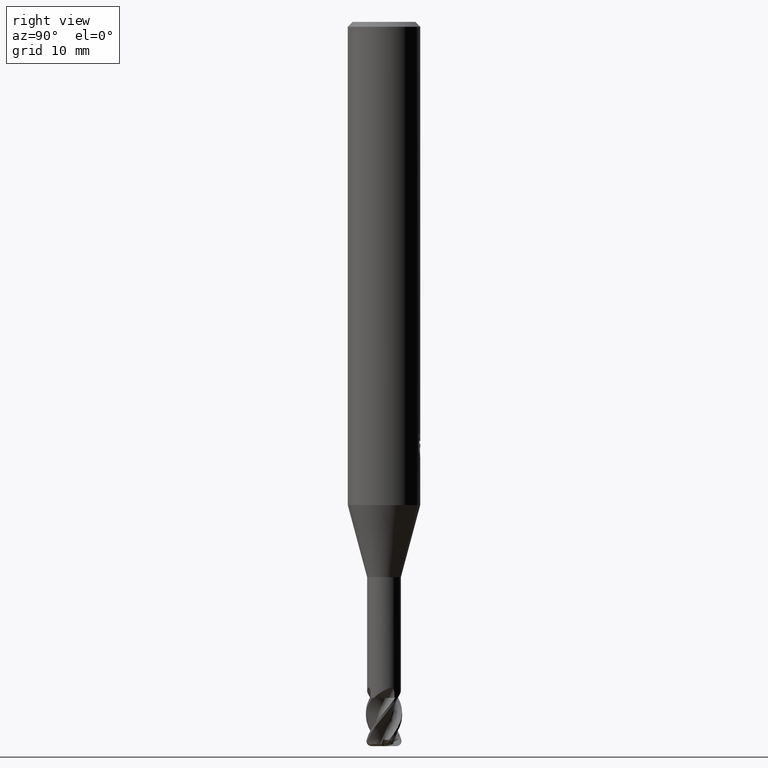
[diagram: clean part render]
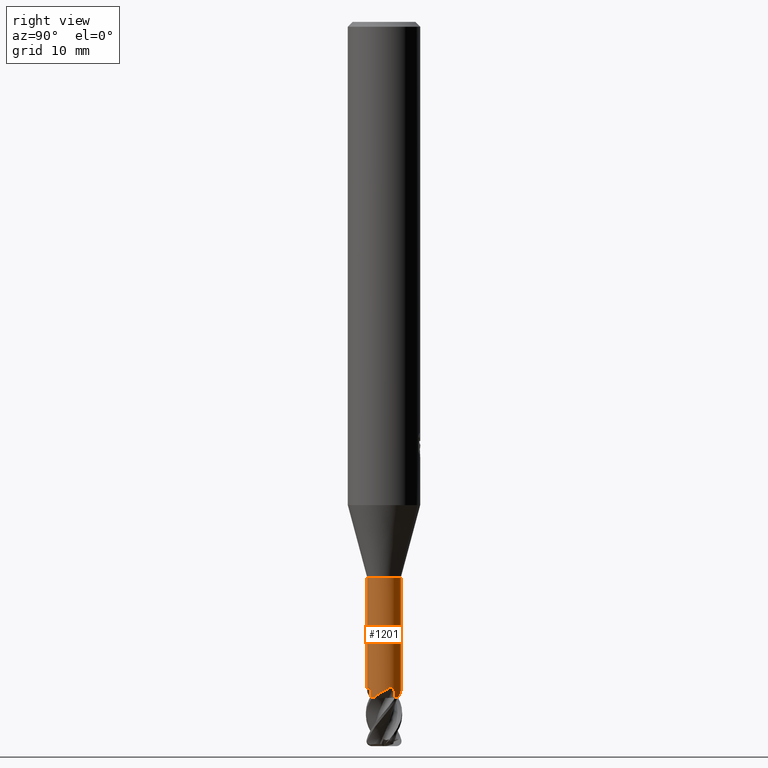
[diagram: same view with one face highlighted and labeled with its STEP entity id]
A machine part, right view. The second image highlights one B-rep face of the part: STEP entity #1201.
In plain terms, the highlighted cylindrical surface (edge-blend (fillet) strip) has radius 1.4 mm, axis along (-0, -0, 1).
Its self-contained STEP definition (entity closure, byte-faithful):
#535=VERTEX_POINT('',#1519);
#549=EDGE_CURVE('',#787,#753,#1535,.T.);
#613=VERTEX_POINT('',#1603);
#639=EDGE_CURVE('',#707,#753,#1630,.T.);
#659=VERTEX_POINT('',#1651);
#673=VERTEX_POINT('',#1667);
#675=VERTEX_POINT('',#1669);
#687=EDGE_CURVE('',#1299,#535,#1681,.T.);
#707=VERTEX_POINT('',#1702);
#753=VERTEX_POINT('',#1750);
#787=VERTEX_POINT('',#1786);
#819=EDGE_CURVE('',#1437,#659,#1820,.T.);
#863=EDGE_CURVE('',#787,#675,#1867,.T.);
#941=VERTEX_POINT('',#1951);
#1025=EDGE_CURVE('',#1299,#659,#2044,.T.);
#1105=EDGE_CURVE('',#613,#675,#2133,.T.);
#1111=EDGE_CURVE('',#1429,#1437,#2140,.T.);
#1167=EDGE_CURVE('',#707,#941,#2204,.T.);
#1201=ADVANCED_FACE('',(#2242),#2243,.T.);
#1299=VERTEX_POINT('',#2349);
#1367=EDGE_CURVE('',#535,#613,#2424,.T.);
#1429=VERTEX_POINT('',#2495);
#1437=VERTEX_POINT('',#2503);
#1459=EDGE_CURVE('',#673,#1429,#2527,.T.);
#1467=EDGE_CURVE('',#673,#941,#2536,.T.);
#1519=CARTESIAN_POINT('',(1.31942104965548,0.467961639694993,-55.1615530628469));
#1535=B_SPLINE_CURVE_WITH_KNOTS('',3,(#2616,#2617,#2618,#2619,#2620,#2621,#2622,#2623),.UNSPECIFIED.,.F.,.F.,(4,2,2,4),(0.0,0.50405209126627,1.0674675362729,1.61827094526245),.UNSPECIFIED.);
#1603=CARTESIAN_POINT('',(1.10440360755385,0.860321262158521,-55.6371360861154));
#1630=LINE('',#2930,#2931);
#1651=CARTESIAN_POINT('',(0.865836450705801,-1.10008510722088,-56.0));
#1667=CARTESIAN_POINT('',(5.57564168717373E-016,-1.39995,-55.4057922484314));
#1669=CARTESIAN_POINT('',(1.10008510722088,0.865836450705804,-56.0000000000001));
#1681=B_SPLINE_CURVE_WITH_KNOTS('',3,(#3227,#3228,#3229,#3230,#3231,#3232,#3233,#3234),.UNSPECIFIED.,.F.,.F.,(4,2,2,4),(0.0,0.504052091266265,1.06746753627289,1.61827094526244),.UNSPECIFIED.);
#1702=CARTESIAN_POINT('',(0.0,1.39995,-46.0));
#1750=CARTESIAN_POINT('',(-4.05476669628662E-015,1.39995,-55.4057922484315));
#1786=CARTESIAN_POINT('',(0.814077818319281,1.13891935984095,-56.0));
#1820=B_SPLINE_CURVE_WITH_KNOTS('',3,(#3704,#3705,#3706,#3707),.UNSPECIFIED.,.F.,.F.,(4,4),(0.0,0.362922418477605),.UNSPECIFIED.);
#1867=CIRCLE('',#3874,1.39995);
#1951=CARTESIAN_POINT('',(1.71438766503364E-016,-1.39995,-46.0));
#2044=CIRCLE('',#4722,1.39995);
#2133=B_SPLINE_CURVE_WITH_KNOTS('',3,(#5327,#5328,#5329,#5330),.UNSPECIFIED.,.F.,.F.,(4,4),(0.0,0.362922418477645),.UNSPECIFIED.);
#2140=B_SPLINE_CURVE_WITH_KNOTS('',3,(#5506,#5507,#5508,#5509,#5510,#5511,#5512,#5513,#5514,#5515,#5516,#5517,#5518,#5519),.UNSPECIFIED.,.F.,.F.,(4,2,2,2,2,2,4),(0.0,0.109753618280985,0.204136593542329,0.305155314648043,0.443518922235428,0.603918761724576,0.772818256165591),.UNSPECIFIED.);
#2204=CIRCLE('',#5790,1.39995);
#2242=FACE_OUTER_BOUND('',#6003,.T.);
#2243=CYLINDRICAL_SURFACE('',#6004,1.39995);
#2349=CARTESIAN_POINT('',(1.13891935984087,-0.814077818319395,-56.0000000000001));
#2424=B_SPLINE_CURVE_WITH_KNOTS('',3,(#7072,#7073,#7074,#7075,#7076,#7077,#7078,#7079,#7080,#7081,#7082,#7083,#7084,#7085),.UNSPECIFIED.,.F.,.F.,(4,2,2,2,2,2,4),(0.0,0.109753618281208,0.204136593542761,0.305155314648615,0.443518922236338,0.603918761725867,0.772818256167293),.UNSPECIFIED.);
#2495=CARTESIAN_POINT('',(0.467961639694992,-1.31942104965548,-55.1615530628469));
#2503=CARTESIAN_POINT('',(0.860321262158521,-1.10440360755386,-55.6371360861154));
#2527=B_SPLINE_CURVE_WITH_KNOTS('',3,(#7739,#7740,#7741,#7742,#7743,#7744,#7745,#7746),.UNSPECIFIED.,.F.,.F.,(4,2,2,4),(0.0,0.504052091266529,1.06746753627353,1.61827094526333),.UNSPECIFIED.);
#2536=LINE('',#7779,#7780);
#2616=CARTESIAN_POINT('',(0.814077818319396,1.13891935984087,-56.0000000000001));
#2617=CARTESIAN_POINT('',(0.716669190858525,1.20854518737963,-55.8821287229262));
#2618=CARTESIAN_POINT('',(0.604628042793647,1.27018373920047,-55.7805471273364));
#2619=CARTESIAN_POINT('',(0.329414926824956,1.36937463500984,-55.5827110528763));
#2620=CARTESIAN_POINT('',(0.170822078999583,1.39928869611798,-55.4946211279033));
#2621=CARTESIAN_POINT('',(-0.15610473590838,1.40057506914443,-55.3246125423888));
#2622=CARTESIAN_POINT('',(-0.316306410261545,1.37320890596755,-55.2466534803271));
#2623=CARTESIAN_POINT('',(-0.467961639694998,1.31942104965548,-55.1615530628468));
#2930=CARTESIAN_POINT('',(-1.71438766503364E-016,1.39995,-51.0));
#2931=VECTOR('',#7949,1.0);
#3227=CARTESIAN_POINT('',(1.13891935984087,-0.814077818319396,-56.0000000000001));
#3228=CARTESIAN_POINT('',(1.20854518737963,-0.716669190858525,-55.8821287229262));
#3229=CARTESIAN_POINT('',(1.27018373920047,-0.604628042793646,-55.7805471273364));
#3230=CARTESIAN_POINT('',(1.36937463500984,-0.329414926824956,-55.5827110528763));
#3231=CARTESIAN_POINT('',(1.39928869611799,-0.170822078999585,-55.4946211279033));
#3232=CARTESIAN_POINT('',(1.40057506914444,0.156104735908381,-55.3246125423888));
#3233=CARTESIAN_POINT('',(1.37320890596755,0.316306410261546,-55.2466534803271));
#3234=CARTESIAN_POINT('',(1.31942104965548,0.467961639694998,-55.1615530628468));
#3704=CARTESIAN_POINT('',(0.86032126215852,-1.10440360755386,-55.6371360861154));
#3705=CARTESIAN_POINT('',(0.862300730676255,-1.10286161797511,-55.7580842006045));
#3706=CARTESIAN_POINT('',(0.86414034781794,-1.10142004730399,-55.879044904701));
#3707=CARTESIAN_POINT('',(0.865836450705803,-1.10008510722088,-56.0000000000001));
#3874=AXIS2_PLACEMENT_3D('',#8135,#8136,#8137);
#4722=AXIS2_PLACEMENT_3D('',#8316,#8317,#8318);
#5327=CARTESIAN_POINT('',(1.10440360755385,0.860321262158519,-55.6371360861154));
#5328=CARTESIAN_POINT('',(1.1028616179751,0.862300730676255,-55.7580842006046));
#5329=CARTESIAN_POINT('',(1.10142004730399,0.864140347817941,-55.879044904701));
#5330=CARTESIAN_POINT('',(1.10008510722088,0.865836450705804,-56.0000000000001));
#5506=CARTESIAN_POINT('',(0.467961639701091,-1.31942104965332,-55.1615530631076));
#5507=CARTESIAN_POINT('',(0.4998425949463,-1.30811376901254,-55.1476182641406));
#5508=CARTESIAN_POINT('',(0.532936461641734,-1.29505732852792,-55.1393262149496));
#5509=CARTESIAN_POINT('',(0.595079748106093,-1.26756742317931,-55.1389568257626));
#5510=CARTESIAN_POINT('',(0.622542676536849,-1.2542537679079,-55.1447936117395));
#5511=CARTESIAN_POINT('',(0.676096997010225,-1.22626618146238,-55.1688305154038));
#5512=CARTESIAN_POINT('',(0.700649944438405,-1.21226294604536,-55.1872752112926));
#5513=CARTESIAN_POINT('',(0.751675939869259,-1.18153651922529,-55.2402971311851));
#5514=CARTESIAN_POINT('',(0.775360609965587,-1.16584446658699,-55.2781062811598));
#5515=CARTESIAN_POINT('',(0.815809903944171,-1.1379848519949,-55.3650412268161));
#5516=CARTESIAN_POINT('',(0.831533778409912,-1.12631721483434,-55.4163569599827));
#5517=CARTESIAN_POINT('',(0.853467640271437,-1.1097978831189,-55.5233564555825));
#5518=CARTESIAN_POINT('',(0.85939209006303,-1.10512742491951,-55.5803624615354));
#5519=CARTESIAN_POINT('',(0.86032126207964,-1.10440360761531,-55.6371360861161));
#5790=AXIS2_PLACEMENT_3D('',#8519,#8520,#8521);
#6003=EDGE_LOOP('',(#8563,#8564,#8565,#8566,#8567,#8568,#8569,#8570,#8571,#8572,#8573,#8574));
#6004=AXIS2_PLACEMENT_3D('',#8575,#8576,#8577);
#7072=CARTESIAN_POINT('',(1.31942104965333,0.467961639701097,-55.1615530631076));
#7073=CARTESIAN_POINT('',(1.30811376901252,0.49984259494637,-55.1476182641406));
#7074=CARTESIAN_POINT('',(1.29505732852791,0.532936461641763,-55.1393262149497));
#7075=CARTESIAN_POINT('',(1.26756742317932,0.595079748106077,-55.1389568257627));
#7076=CARTESIAN_POINT('',(1.25425376790792,0.62254267653682,-55.1447936117395));
#7077=CARTESIAN_POINT('',(1.22626618146237,0.676096997010241,-55.1688305154038));
#7078=CARTESIAN_POINT('',(1.21226294604534,0.70064994443843,-55.1872752112926));
#7079=CARTESIAN_POINT('',(1.18153651922529,0.751675939869259,-55.2402971311851));
#7080=CARTESIAN_POINT('',(1.16584446658699,0.775360609965587,-55.2781062811598));
#7081=CARTESIAN_POINT('',(1.1379848519949,0.815809903944173,-55.3650412268161));
#7082=CARTESIAN_POINT('',(1.12631721483434,0.831533778409913,-55.4163569599827));
#7083=CARTESIAN_POINT('',(1.1097978831189,0.853467640271438,-55.5233564555825));
#7084=CARTESIAN_POINT('',(1.10512742491951,0.859392090063031,-55.5803624615354));
#7085=CARTESIAN_POINT('',(1.10440360761531,0.86032126207964,-55.6371360861161));
#7739=CARTESIAN_POINT('',(-0.814077818319419,-1.13891935984085,-56.0000000000001));
#7740=CARTESIAN_POINT('',(-0.7166691908585,-1.20854518737965,-55.8821287229261));
#7741=CARTESIAN_POINT('',(-0.604628042793646,-1.27018373920046,-55.7805471273364));
#7742=CARTESIAN_POINT('',(-0.329414926825012,-1.36937463500982,-55.5827110528763));
#7743=CARTESIAN_POINT('',(-0.170822078999658,-1.39928869611798,-55.4946211279033));
#7744=CARTESIAN_POINT('',(0.156104735908329,-1.40057506914444,-55.3246125423888));
#7745=CARTESIAN_POINT('',(0.31630641026152,-1.37320890596757,-55.2466534803271));
#7746=CARTESIAN_POINT('',(0.467961639694998,-1.31942104965548,-55.1615530628468));
#7779=CARTESIAN_POINT('',(1.71438766503364E-016,-1.39995,-51.0));
#7780=VECTOR('',#8884,1.0);
#7949=DIRECTION('',(0.0,0.0,-1.0));
#8135=CARTESIAN_POINT('',(0.0,0.0,-56.0));
#8136=DIRECTION('',(0.0,0.0,-1.0));
#8137=DIRECTION('',(0.0,1.0,0.0));
#8316=CARTESIAN_POINT('',(0.0,0.0,-56.0));
#8317=DIRECTION('',(0.0,0.0,-1.0));
#8318=DIRECTION('',(0.0,1.0,0.0));
#8519=CARTESIAN_POINT('',(0.0,0.0,-46.0));
#8520=DIRECTION('',(0.0,0.0,-1.0));
#8521=DIRECTION('',(0.0,1.0,0.0));
#8563=ORIENTED_EDGE('',*,*,#639,.F.);
#8564=ORIENTED_EDGE('',*,*,#1167,.T.);
#8565=ORIENTED_EDGE('',*,*,#1467,.F.);
#8566=ORIENTED_EDGE('',*,*,#1459,.T.);
#8567=ORIENTED_EDGE('',*,*,#1111,.T.);
#8568=ORIENTED_EDGE('',*,*,#819,.T.);
#8569=ORIENTED_EDGE('',*,*,#1025,.F.);
#8570=ORIENTED_EDGE('',*,*,#687,.T.);
#8571=ORIENTED_EDGE('',*,*,#1367,.T.);
#8572=ORIENTED_EDGE('',*,*,#1105,.T.);
#8573=ORIENTED_EDGE('',*,*,#863,.F.);
#8574=ORIENTED_EDGE('',*,*,#549,.T.);
#8575=CARTESIAN_POINT('',(0.0,0.0,-51.0));
#8576=DIRECTION('',(-0.0,-0.0,1.0));
#8577=DIRECTION('',(0.0,1.0,0.0));
#8884=DIRECTION('',(-0.0,-0.0,1.0));